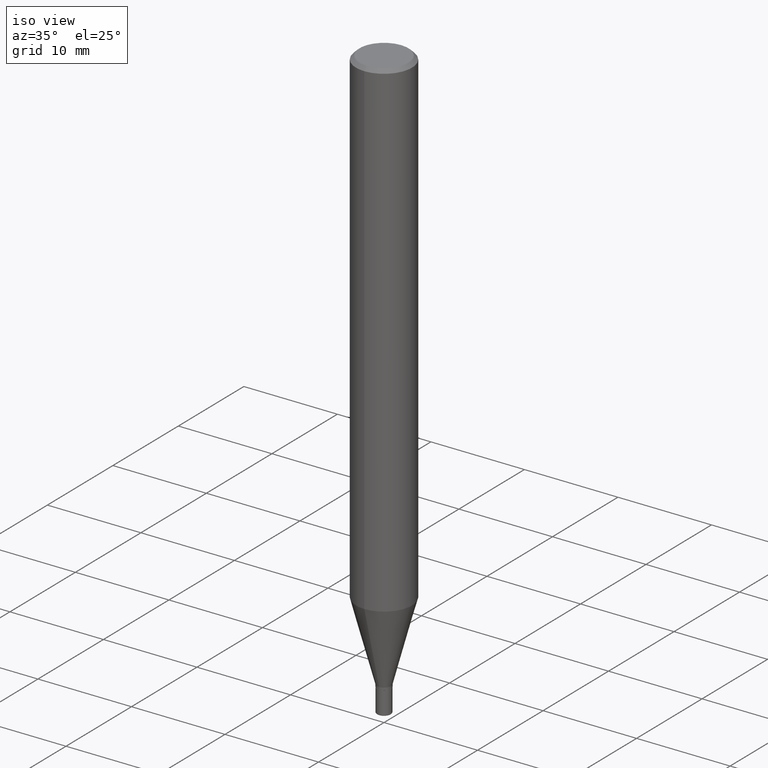
[diagram: clean part render]
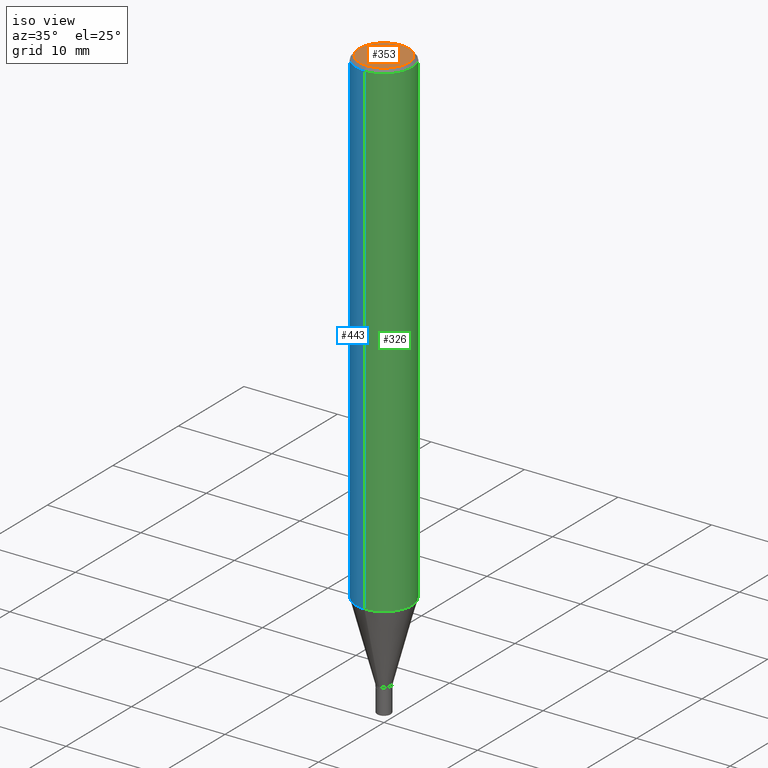
[diagram: same view with three faces highlighted in distinct colors, each labeled with its STEP entity id]
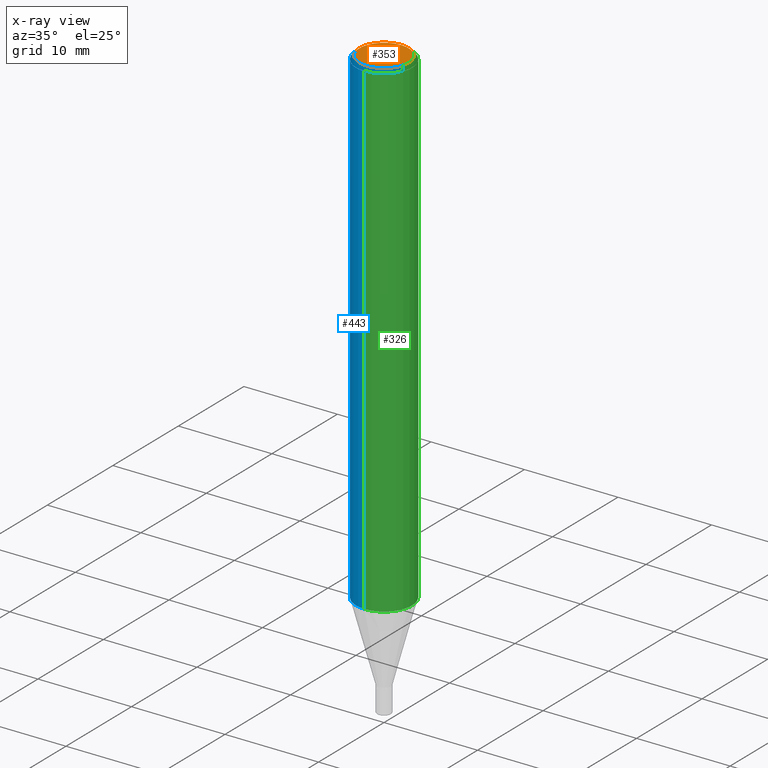
[diagram: x-ray of the same camera — body ghosted, the three highlighted faces saturated]
A machine part, iso view with three faces highlighted in distinct colors.
The next image is the same camera in x-ray (body ghosted, the three faces saturated) — at least one of them is partly hidden behind the body in this view.
Their STEP definitions:

[orange] entity #353 — the highlighted planar face has unit normal (0, -0, -1).
#5 = CIRCLE ( 'NONE', #274, 0.1031000000000000111 ) ;
#24 = DIRECTION ( 'NONE',  ( -6.982962677686265922E-15, -1.000000000000000000, 3.491198222142504346E-15 ) ) ;
#31 = DIRECTION ( 'NONE',  ( 2.445666505520536631E-29, -3.491198222142504740E-15, -1.000000000000000000 ) ) ;
#62 = EDGE_LOOP ( 'NONE', ( #461, #230 ) ) ;
#89 = CARTESIAN_POINT ( 'NONE',  ( -7.587710785535310407E-16, -0.1031000000000000111, 3.599133473710561034E-16 ) ) ;
#162 = DIRECTION ( 'NONE',  ( -6.982962677686265922E-15, -1.000000000000000000, 3.491198222142504346E-15 ) ) ;
#216 = CIRCLE ( 'NONE', #346, 0.1031000000000000111 ) ;
#230 = ORIENTED_EDGE ( 'NONE', *, *, #349, .T. ) ;
#237 = EDGE_CURVE ( 'NONE', #306, #495, #216, .T. ) ;
#244 = DIRECTION ( 'NONE',  ( -2.445666505520537191E-29, 3.491198222142504346E-15, 1.000000000000000000 ) ) ;
#274 = AXIS2_PLACEMENT_3D ( 'NONE', #351, #244, #162 ) ;
#279 = CARTESIAN_POINT ( 'NONE',  ( 7.138737119009904695E-49, -1.019057434117555822E-34, -2.918933183611021232E-20 ) ) ;
#291 = DIRECTION ( 'NONE',  ( 6.982962677686265922E-15, 1.000000000000000000, -3.491198222142504740E-15 ) ) ;
#306 = VERTEX_POINT ( 'NONE', #513 ) ;
#346 = AXIS2_PLACEMENT_3D ( 'NONE', #279, #385, #24 ) ;
#349 = EDGE_CURVE ( 'NONE', #495, #306, #5, .T. ) ;
#351 = CARTESIAN_POINT ( 'NONE',  ( 7.138737119009904695E-49, -1.019057434117555822E-34, -2.918933183611021232E-20 ) ) ;
#353 = ADVANCED_FACE ( 'NONE', ( #481 ), #360, .F. ) ;
#355 = AXIS2_PLACEMENT_3D ( 'NONE', #403, #31, #291 ) ;
#360 = PLANE ( 'NONE',  #355 ) ;
#385 = DIRECTION ( 'NONE',  ( -2.445666505520537191E-29, 3.491198222142504346E-15, 1.000000000000000000 ) ) ;
#403 = CARTESIAN_POINT ( 'NONE',  ( 7.199434520694541042E-16, 0.1031000000000000111, -3.599571313688102517E-16 ) ) ;
#461 = ORIENTED_EDGE ( 'NONE', *, *, #237, .T. ) ;
#481 = FACE_OUTER_BOUND ( 'NONE', #62, .T. ) ;
#495 = VERTEX_POINT ( 'NONE', #89 ) ;
#513 = CARTESIAN_POINT ( 'NONE',  ( 7.723156721521011834E-16, 0.1031000000000000111, -3.599717260347283833E-16 ) ) ;

[blue] entity #443 — the highlighted cylindrical surface (edge-blend (fillet) strip) has radius 2.9997 mm, axis along (-0, 0, 1).
#19 = VERTEX_POINT ( 'NONE', #289 ) ;
#29 = VECTOR ( 'NONE', #226, 39.37007874015748143 ) ;
#33 = EDGE_CURVE ( 'NONE', #19, #83, #471, .T. ) ;
#51 = CARTESIAN_POINT ( 'NONE',  ( 3.668499758280795470E-31, -5.236797333213741629E-17, -0.01499999999999995781 ) ) ;
#61 = VERTEX_POINT ( 'NONE', #126 ) ;
#71 = DIRECTION ( 'NONE',  ( -6.982962677686265922E-15, -1.000000000000000000, 4.626330217890369336E-15 ) ) ;
#83 = VERTEX_POINT ( 'NONE', #247 ) ;
#102 = DIRECTION ( 'NONE',  ( -2.445666505520537191E-29, 3.491198222142504346E-15, 1.000000000000000000 ) ) ;
#120 = DIRECTION ( 'NONE',  ( -2.445666505520537191E-29, 3.491198222142504346E-15, 1.000000000000000000 ) ) ;
#126 = CARTESIAN_POINT ( 'NONE',  ( -8.246878922347475723E-16, -0.1181000000000000522, -0.01499999999999954495 ) ) ;
#129 = AXIS2_PLACEMENT_3D ( 'NONE', #161, #120, #287 ) ;
#133 = CARTESIAN_POINT ( 'NONE',  ( -8.246878922347479668E-16, -0.1180999999999999966, 4.123105100350297089E-16 ) ) ;
#138 = EDGE_CURVE ( 'NONE', #19, #462, #427, .T. ) ;
#143 = EDGE_CURVE ( 'NONE', #462, #61, #316, .T. ) ;
#158 = FACE_OUTER_BOUND ( 'NONE', #205, .T. ) ;
#161 = CARTESIAN_POINT ( 'NONE',  ( 0.000000000000000000, 0.000000000000000000, 0.000000000000000000 ) ) ;
#176 = CARTESIAN_POINT ( 'NONE',  ( 8.391509709326781971E-16, 0.1180999999999999966, -4.123105100350297089E-16 ) ) ;
#192 = ORIENTED_EDGE ( 'NONE', *, *, #138, .F. ) ;
#193 = DIRECTION ( 'NONE',  ( -2.445666505520537191E-29, 3.491198222142504346E-15, 1.000000000000000000 ) ) ;
#201 = CARTESIAN_POINT ( 'NONE',  ( 8.391509709327288814E-16, 0.1180999999999999411, -0.01500000000000036894 ) ) ;
#205 = EDGE_LOOP ( 'NONE', ( #192, #228, #397, #386 ) ) ;
#226 = DIRECTION ( 'NONE',  ( -2.445666505520537191E-29, 3.491198222142504740E-15, 1.000000000000000000 ) ) ;
#228 = ORIENTED_EDGE ( 'NONE', *, *, #33, .T. ) ;
#247 = CARTESIAN_POINT ( 'NONE',  ( -8.246878922346977755E-16, -0.1181000000000072270, -2.061126900989775912 ) ) ;
#249 = DIRECTION ( 'NONE',  ( -2.445666505520537191E-29, 3.491198222142504740E-15, 1.000000000000000000 ) ) ;
#257 = DIRECTION ( 'NONE',  ( -6.982962677686265922E-15, -1.000000000000000000, 3.487819265831411744E-15 ) ) ;
#287 = DIRECTION ( 'NONE',  ( -6.982962677686265922E-15, -1.000000000000000000, 3.491198222142503951E-15 ) ) ;
#289 = CARTESIAN_POINT ( 'NONE',  ( 8.391509709327282898E-16, 0.1180999999999927802, -2.061126900989776800 ) ) ;
#297 = VECTOR ( 'NONE', #249, 39.37007874015748143 ) ;
#316 = CIRCLE ( 'NONE', #380, 0.1180999999999999966 ) ;
#368 = LINE ( 'NONE', #133, #297 ) ;
#380 = AXIS2_PLACEMENT_3D ( 'NONE', #51, #102, #257 ) ;
#386 = ORIENTED_EDGE ( 'NONE', *, *, #143, .F. ) ;
#397 = ORIENTED_EDGE ( 'NONE', *, *, #505, .T. ) ;
#401 = CARTESIAN_POINT ( 'NONE',  ( 5.040829025378040507E-29, -7.195802572345596086E-15, -2.061126900989776356 ) ) ;
#427 = LINE ( 'NONE', #176, #29 ) ;
#443 = ADVANCED_FACE ( 'NONE', ( #158 ), #476, .T. ) ;
#462 = VERTEX_POINT ( 'NONE', #201 ) ;
#471 = CIRCLE ( 'NONE', #499, 0.1180999999999999966 ) ;
#476 = CYLINDRICAL_SURFACE ( 'NONE', #129, 0.1180999999999999966 ) ;
#499 = AXIS2_PLACEMENT_3D ( 'NONE', #401, #193, #71 ) ;
#505 = EDGE_CURVE ( 'NONE', #83, #61, #368, .T. ) ;

[green] entity #326 — the highlighted cylindrical surface (edge-blend (fillet) strip) has radius 2.9997 mm, axis along (-0, 0, 1).
#11 = CIRCLE ( 'NONE', #88, 0.1180999999999999966 ) ;
#19 = VERTEX_POINT ( 'NONE', #289 ) ;
#29 = VECTOR ( 'NONE', #226, 39.37007874015748143 ) ;
#32 = FACE_OUTER_BOUND ( 'NONE', #64, .T. ) ;
#40 = AXIS2_PLACEMENT_3D ( 'NONE', #173, #218, #484 ) ;
#54 = ORIENTED_EDGE ( 'NONE', *, *, #407, .T. ) ;
#57 = AXIS2_PLACEMENT_3D ( 'NONE', #116, #123, #354 ) ;
#61 = VERTEX_POINT ( 'NONE', #126 ) ;
#64 = EDGE_LOOP ( 'NONE', ( #54, #416, #500, #340 ) ) ;
#83 = VERTEX_POINT ( 'NONE', #247 ) ;
#88 = AXIS2_PLACEMENT_3D ( 'NONE', #284, #435, #507 ) ;
#116 = CARTESIAN_POINT ( 'NONE',  ( 0.000000000000000000, 0.000000000000000000, 0.000000000000000000 ) ) ;
#123 = DIRECTION ( 'NONE',  ( -2.445666505520537191E-29, 3.491198222142504346E-15, 1.000000000000000000 ) ) ;
#126 = CARTESIAN_POINT ( 'NONE',  ( -8.246878922347475723E-16, -0.1181000000000000522, -0.01499999999999954495 ) ) ;
#133 = CARTESIAN_POINT ( 'NONE',  ( -8.246878922347479668E-16, -0.1180999999999999966, 4.123105100350297089E-16 ) ) ;
#138 = EDGE_CURVE ( 'NONE', #19, #462, #427, .T. ) ;
#173 = CARTESIAN_POINT ( 'NONE',  ( 3.668499758280795470E-31, -5.236797333213741629E-17, -0.01499999999999995781 ) ) ;
#176 = CARTESIAN_POINT ( 'NONE',  ( 8.391509709326781971E-16, 0.1180999999999999966, -4.123105100350297089E-16 ) ) ;
#201 = CARTESIAN_POINT ( 'NONE',  ( 8.391509709327288814E-16, 0.1180999999999999411, -0.01500000000000036894 ) ) ;
#218 = DIRECTION ( 'NONE',  ( -2.445666505520537191E-29, 3.491198222142504346E-15, 1.000000000000000000 ) ) ;
#226 = DIRECTION ( 'NONE',  ( -2.445666505520537191E-29, 3.491198222142504740E-15, 1.000000000000000000 ) ) ;
#247 = CARTESIAN_POINT ( 'NONE',  ( -8.246878922346977755E-16, -0.1181000000000072270, -2.061126900989775912 ) ) ;
#249 = DIRECTION ( 'NONE',  ( -2.445666505520537191E-29, 3.491198222142504740E-15, 1.000000000000000000 ) ) ;
#271 = CIRCLE ( 'NONE', #40, 0.1180999999999999966 ) ;
#284 = CARTESIAN_POINT ( 'NONE',  ( 5.040829025378040507E-29, -7.195802572345596086E-15, -2.061126900989776356 ) ) ;
#289 = CARTESIAN_POINT ( 'NONE',  ( 8.391509709327282898E-16, 0.1180999999999927802, -2.061126900989776800 ) ) ;
#297 = VECTOR ( 'NONE', #249, 39.37007874015748143 ) ;
#326 = ADVANCED_FACE ( 'NONE', ( #32 ), #475, .T. ) ;
#340 = ORIENTED_EDGE ( 'NONE', *, *, #505, .F. ) ;
#354 = DIRECTION ( 'NONE',  ( -6.982962677686265922E-15, -1.000000000000000000, 3.491198222142503951E-15 ) ) ;
#368 = LINE ( 'NONE', #133, #297 ) ;
#407 = EDGE_CURVE ( 'NONE', #83, #19, #11, .T. ) ;
#416 = ORIENTED_EDGE ( 'NONE', *, *, #138, .T. ) ;
#427 = LINE ( 'NONE', #176, #29 ) ;
#435 = DIRECTION ( 'NONE',  ( -2.445666505520537191E-29, 3.491198222142504346E-15, 1.000000000000000000 ) ) ;
#462 = VERTEX_POINT ( 'NONE', #201 ) ;
#475 = CYLINDRICAL_SURFACE ( 'NONE', #57, 0.1180999999999999966 ) ;
#484 = DIRECTION ( 'NONE',  ( -6.982962677686265922E-15, -1.000000000000000000, 3.487819265831411744E-15 ) ) ;
#500 = ORIENTED_EDGE ( 'NONE', *, *, #506, .F. ) ;
#505 = EDGE_CURVE ( 'NONE', #83, #61, #368, .T. ) ;
#506 = EDGE_CURVE ( 'NONE', #61, #462, #271, .T. ) ;
#507 = DIRECTION ( 'NONE',  ( -6.982962677686265922E-15, -1.000000000000000000, 4.626330217890369336E-15 ) ) ;